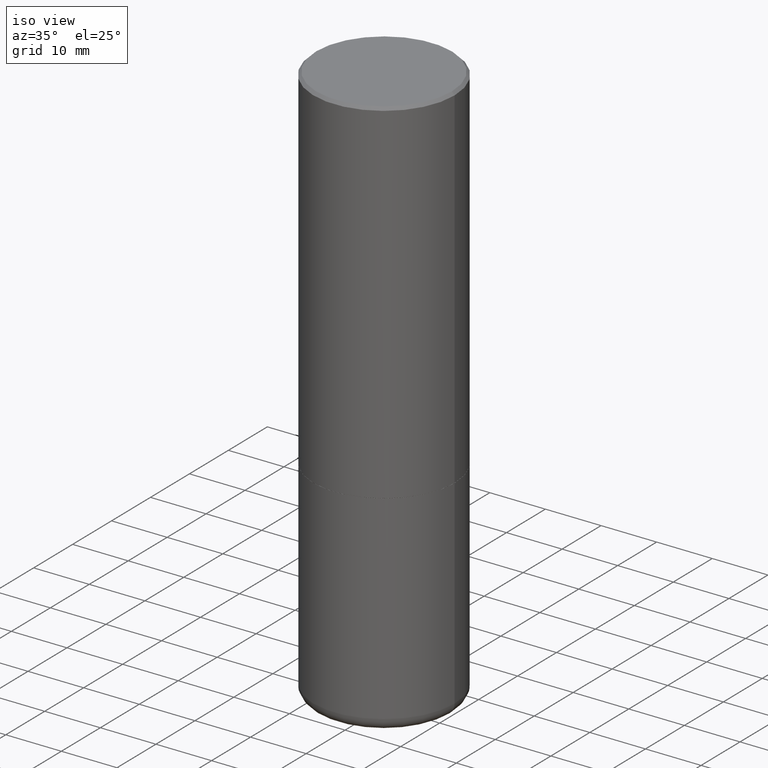
[diagram: clean part render]
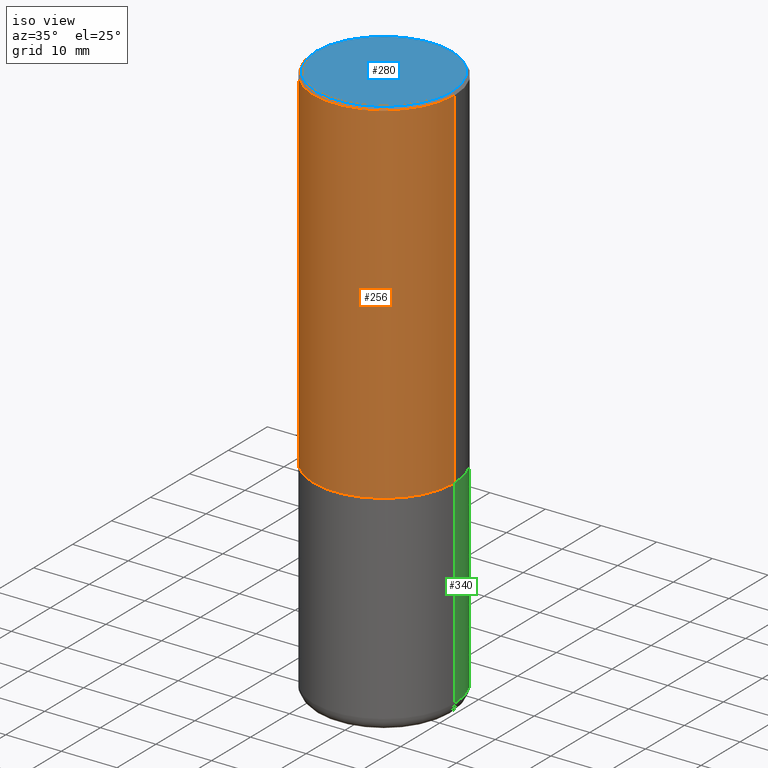
[diagram: same view with three faces highlighted in distinct colors, each labeled with its STEP entity id]
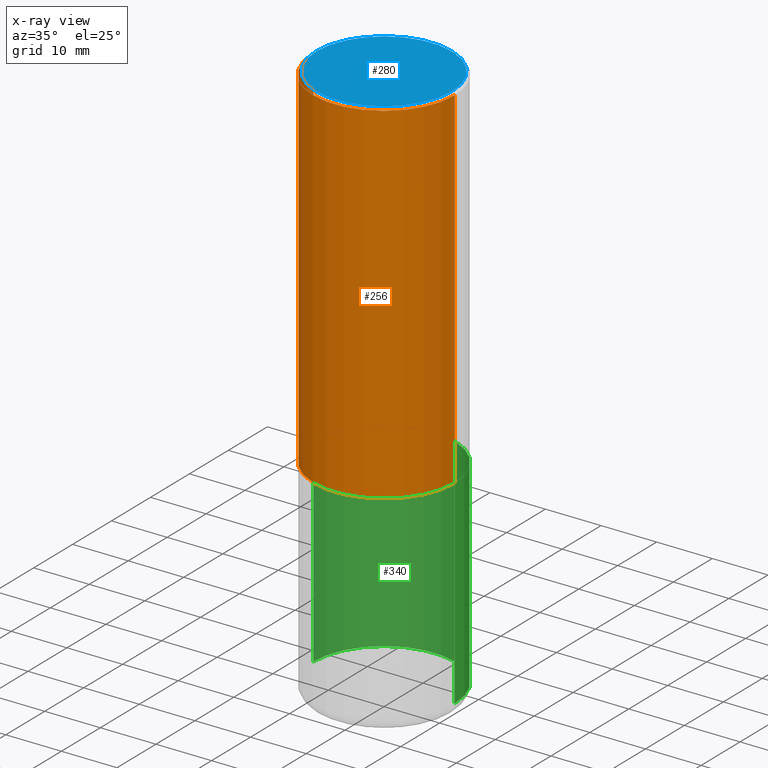
[diagram: x-ray of the same camera — body ghosted, the three highlighted faces saturated]
A machine part, iso view with three faces highlighted in distinct colors.
The next image is the same camera in x-ray (body ghosted, the three faces saturated) — at least one of them is partly hidden behind the body in this view.
Their STEP definitions:

[orange] entity #256 — the highlighted cylindrical surface (partial cylindrical patch) has radius 12.7 mm, axis along (-0, 0, 1).
#15 = LINE ( 'NONE', #431, #335 ) ;
#17 = CARTESIAN_POINT ( 'NONE',  ( 4.890937612370278413E-31, -6.982962677686297772E-17, -0.02000000000000002123 ) ) ;
#30 = CARTESIAN_POINT ( 'NONE',  ( -0.4999999999999996669, 3.421651712066268085E-15, -0.02000000000000002123 ) ) ;
#31 = ORIENTED_EDGE ( 'NONE', *, *, #58, .T. ) ;
#47 = CARTESIAN_POINT ( 'NONE',  ( -0.4999999999999998335, 3.552713678800499746E-15, -2.459467545127452330E-29 ) ) ;
#48 = CIRCLE ( 'NONE', #290, 0.5000000000000000000 ) ;
#58 = EDGE_CURVE ( 'NONE', #350, #138, #15, .T. ) ;
#68 = AXIS2_PLACEMENT_3D ( 'NONE', #17, #80, #149 ) ;
#69 = DIRECTION ( 'NONE',  ( -2.445468806185136597E-29, 3.491481338843145583E-15, 1.000000000000000000 ) ) ;
#80 = DIRECTION ( 'NONE',  ( -2.445468806185136597E-29, 3.491481338843145583E-15, 1.000000000000000000 ) ) ;
#93 = VERTEX_POINT ( 'NONE', #199 ) ;
#106 = DIRECTION ( 'NONE',  ( 1.000000000000000000, -6.982962677686265133E-15, 0.000000000000000000 ) ) ;
#110 = ORIENTED_EDGE ( 'NONE', *, *, #239, .T. ) ;
#129 = AXIS2_PLACEMENT_3D ( 'NONE', #380, #69, #347 ) ;
#137 = FACE_OUTER_BOUND ( 'NONE', #240, .T. ) ;
#138 = VERTEX_POINT ( 'NONE', #308 ) ;
#149 = DIRECTION ( 'NONE',  ( 1.000000000000000000, -6.982962677686266711E-15, 0.000000000000000000 ) ) ;
#185 = DIRECTION ( 'NONE',  ( -2.445468806185136877E-29, 3.491481338843145188E-15, 1.000000000000000000 ) ) ;
#189 = CARTESIAN_POINT ( 'NONE',  ( 0.5000000000000000000, -1.221669320461215371E-14, -2.499000000000000110 ) ) ;
#195 = EDGE_CURVE ( 'NONE', #93, #427, #222, .T. ) ;
#196 = CIRCLE ( 'NONE', #68, 0.4999999999999996669 ) ;
#199 = CARTESIAN_POINT ( 'NONE',  ( -0.5000000000000000000, -8.448070674724403070E-16, -2.499000000000000110 ) ) ;
#222 = LINE ( 'NONE', #47, #410 ) ;
#239 = EDGE_CURVE ( 'NONE', #93, #350, #48, .T. ) ;
#240 = EDGE_LOOP ( 'NONE', ( #371, #110, #31, #395 ) ) ;
#242 = CYLINDRICAL_SURFACE ( 'NONE', #129, 0.4999999999999998335 ) ;
#256 = ADVANCED_FACE ( 'NONE', ( #137 ), #242, .T. ) ;
#287 = DIRECTION ( 'NONE',  ( -2.445468806185136877E-29, 3.491481338843145188E-15, 1.000000000000000000 ) ) ;
#290 = AXIS2_PLACEMENT_3D ( 'NONE', #412, #313, #106 ) ;
#297 = EDGE_CURVE ( 'NONE', #427, #138, #196, .T. ) ;
#308 = CARTESIAN_POINT ( 'NONE',  ( 0.4999999999999996669, -3.500078625662626318E-15, -0.02000000000000002123 ) ) ;
#313 = DIRECTION ( 'NONE',  ( -2.445468806185136597E-29, 3.491481338843145583E-15, 1.000000000000000000 ) ) ;
#335 = VECTOR ( 'NONE', #185, 39.37007874015748143 ) ;
#347 = DIRECTION ( 'NONE',  ( 1.000000000000000000, -6.982962677686267499E-15, 4.876176775795936353E-29 ) ) ;
#350 = VERTEX_POINT ( 'NONE', #189 ) ;
#371 = ORIENTED_EDGE ( 'NONE', *, *, #195, .F. ) ;
#380 = CARTESIAN_POINT ( 'NONE',  ( 0.000000000000000000, 0.000000000000000000, 0.000000000000000000 ) ) ;
#395 = ORIENTED_EDGE ( 'NONE', *, *, #297, .F. ) ;
#410 = VECTOR ( 'NONE', #287, 39.37007874015748143 ) ;
#412 = CARTESIAN_POINT ( 'NONE',  ( 6.111226546656657010E-29, -8.725211865769021935E-15, -2.499000000000000110 ) ) ;
#427 = VERTEX_POINT ( 'NONE', #30 ) ;
#431 = CARTESIAN_POINT ( 'NONE',  ( 0.4999999999999998335, -3.491481338843132566E-15, 2.438088387897967336E-29 ) ) ;

[blue] entity #280 — the highlighted planar face has unit normal (0, -0, -1).
#5 = VERTEX_POINT ( 'NONE', #388 ) ;
#19 = DIRECTION ( 'NONE',  ( -2.445468806185136597E-29, 3.491481338843145583E-15, 1.000000000000000000 ) ) ;
#59 = AXIS2_PLACEMENT_3D ( 'NONE', #225, #358, #366 ) ;
#89 = PLANE ( 'NONE',  #59 ) ;
#117 = CARTESIAN_POINT ( 'NONE',  ( -3.131554243005659264E-46, 4.471029511141341874E-32, 1.280553747030123384E-17 ) ) ;
#181 = AXIS2_PLACEMENT_3D ( 'NONE', #117, #19, #394 ) ;
#198 = CARTESIAN_POINT ( 'NONE',  ( -0.4799999999999996492, 3.386736898677836830E-15, 1.280553747027767124E-17 ) ) ;
#210 = ORIENTED_EDGE ( 'NONE', *, *, #408, .T. ) ;
#225 = CARTESIAN_POINT ( 'NONE',  ( 3.351822085289405181E-15, 0.4799999999999996492, -1.669508273909558064E-15 ) ) ;
#280 = ADVANCED_FACE ( 'NONE', ( #324 ), #89, .F. ) ;
#302 = AXIS2_PLACEMENT_3D ( 'NONE', #339, #307, #344 ) ;
#303 = EDGE_CURVE ( 'NONE', #392, #5, #346, .T. ) ;
#305 = ORIENTED_EDGE ( 'NONE', *, *, #303, .T. ) ;
#307 = DIRECTION ( 'NONE',  ( -2.445468806185136597E-29, 3.491481338843145583E-15, 1.000000000000000000 ) ) ;
#321 = EDGE_LOOP ( 'NONE', ( #305, #210 ) ) ;
#324 = FACE_OUTER_BOUND ( 'NONE', #321, .T. ) ;
#339 = CARTESIAN_POINT ( 'NONE',  ( -3.131554243005659264E-46, 4.471029511141341874E-32, 1.280553747030123384E-17 ) ) ;
#344 = DIRECTION ( 'NONE',  ( 1.000000000000000000, -6.982962677686267499E-15, 4.876036955247132767E-29 ) ) ;
#346 = CIRCLE ( 'NONE', #181, 0.4799999999999996492 ) ;
#358 = DIRECTION ( 'NONE',  ( 2.438088387897960049E-29, -3.491481338843145188E-15, -1.000000000000000000 ) ) ;
#366 = DIRECTION ( 'NONE',  ( -1.000000000000000000, 6.982962677686265922E-15, -4.876176775795935793E-29 ) ) ;
#388 = CARTESIAN_POINT ( 'NONE',  ( 0.4799999999999996492, -3.396558832296479338E-15, 1.280553747032483033E-17 ) ) ;
#392 = VERTEX_POINT ( 'NONE', #198 ) ;
#394 = DIRECTION ( 'NONE',  ( 1.000000000000000000, -6.982962677686267499E-15, 4.876036955247132767E-29 ) ) ;
#408 = EDGE_CURVE ( 'NONE', #5, #392, #435, .T. ) ;
#435 = CIRCLE ( 'NONE', #302, 0.4799999999999996492 ) ;

[green] entity #340 — the highlighted cylindrical surface (partial cylindrical patch) has radius 12.7 mm, axis along (-0, 0, 1).
#1 = CARTESIAN_POINT ( 'NONE',  ( -0.5000000000000000000, -7.637699335114127230E-15, -2.500000000000000000 ) ) ;
#10 = DIRECTION ( 'NONE',  ( 1.000000000000000000, -6.982962677686266711E-15, 0.000000000000000000 ) ) ;
#21 = ORIENTED_EDGE ( 'NONE', *, *, #428, .F. ) ;
#41 = CARTESIAN_POINT ( 'NONE',  ( 9.562084660884571289E-29, -1.365212268072139138E-14, -3.910123341872087988 ) ) ;
#51 = DIRECTION ( 'NONE',  ( 1.000000000000000000, -6.982962677686266711E-15, 4.876176775795935793E-29 ) ) ;
#77 = EDGE_LOOP ( 'NONE', ( #291, #418, #228, #21 ) ) ;
#102 = LINE ( 'NONE', #270, #405 ) ;
#122 = DIRECTION ( 'NONE',  ( -2.445468806185136597E-29, 3.491481338843145583E-15, 1.000000000000000000 ) ) ;
#133 = CARTESIAN_POINT ( 'NONE',  ( 0.5000000000000000000, -3.491481338843133355E-15, 2.438088387897967896E-29 ) ) ;
#134 = CIRCLE ( 'NONE', #163, 0.5000000000000000000 ) ;
#135 = DIRECTION ( 'NONE',  ( -2.445468806185136877E-29, 3.491481338843145188E-15, 1.000000000000000000 ) ) ;
#136 = VERTEX_POINT ( 'NONE', #377 ) ;
#141 = VERTEX_POINT ( 'NONE', #275 ) ;
#157 = VECTOR ( 'NONE', #135, 39.37007874015748143 ) ;
#163 = AXIS2_PLACEMENT_3D ( 'NONE', #41, #316, #10 ) ;
#169 = EDGE_CURVE ( 'NONE', #136, #141, #134, .T. ) ;
#207 = DIRECTION ( 'NONE',  ( 1.000000000000000000, -6.982962677686269077E-15, 0.000000000000000000 ) ) ;
#213 = CARTESIAN_POINT ( 'NONE',  ( 6.113672015462842613E-29, -8.728703347107864943E-15, -2.500000000000000000 ) ) ;
#228 = ORIENTED_EDGE ( 'NONE', *, *, #231, .F. ) ;
#231 = EDGE_CURVE ( 'NONE', #376, #232, #425, .T. ) ;
#232 = VERTEX_POINT ( 'NONE', #1 ) ;
#265 = AXIS2_PLACEMENT_3D ( 'NONE', #213, #276, #207 ) ;
#270 = CARTESIAN_POINT ( 'NONE',  ( -0.5000000000000000000, 3.552713678800500929E-15, -2.459467545127452891E-29 ) ) ;
#275 = CARTESIAN_POINT ( 'NONE',  ( -0.5000000000000000000, -7.637699335114127230E-15, -3.910123341872087988 ) ) ;
#276 = DIRECTION ( 'NONE',  ( -2.445468806185136597E-29, 3.491481338843145583E-15, 1.000000000000000000 ) ) ;
#291 = ORIENTED_EDGE ( 'NONE', *, *, #169, .T. ) ;
#310 = AXIS2_PLACEMENT_3D ( 'NONE', #365, #122, #51 ) ;
#316 = DIRECTION ( 'NONE',  ( -2.445468806185136597E-29, 3.491481338843145583E-15, 1.000000000000000000 ) ) ;
#331 = FACE_OUTER_BOUND ( 'NONE', #77, .T. ) ;
#333 = CARTESIAN_POINT ( 'NONE',  ( 0.5000000000000000000, -1.222018468595099830E-14, -2.500000000000000000 ) ) ;
#340 = ADVANCED_FACE ( 'NONE', ( #331 ), #426, .T. ) ;
#365 = CARTESIAN_POINT ( 'NONE',  ( 0.000000000000000000, 0.000000000000000000, 0.000000000000000000 ) ) ;
#375 = DIRECTION ( 'NONE',  ( -2.445468806185136877E-29, 3.491481338843145188E-15, 1.000000000000000000 ) ) ;
#376 = VERTEX_POINT ( 'NONE', #333 ) ;
#377 = CARTESIAN_POINT ( 'NONE',  ( 0.5000000000000000000, -1.714360401956452473E-14, -3.910123341872087988 ) ) ;
#390 = EDGE_CURVE ( 'NONE', #141, #232, #102, .T. ) ;
#405 = VECTOR ( 'NONE', #375, 39.37007874015748143 ) ;
#418 = ORIENTED_EDGE ( 'NONE', *, *, #390, .T. ) ;
#425 = CIRCLE ( 'NONE', #265, 0.5000000000000000000 ) ;
#426 = CYLINDRICAL_SURFACE ( 'NONE', #310, 0.5000000000000000000 ) ;
#428 = EDGE_CURVE ( 'NONE', #136, #376, #437, .T. ) ;
#437 = LINE ( 'NONE', #133, #157 ) ;